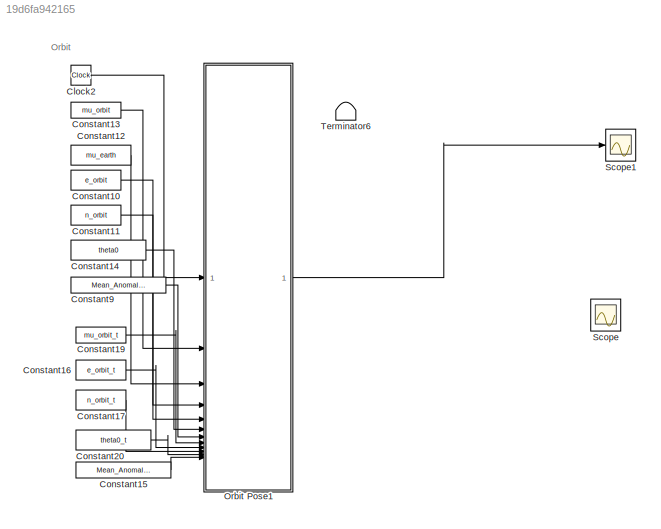
MODEL slx_19d6fa942165
KIND model
CONFIG AbsTol = auto
CONFIG EnableMultiTasking = off
CONFIG FixedStep = auto
CONFIG MaxStep = auto
CONFIG MinStep = auto
CONFIG RelTol = 1e-3
CONFIG SampleTimeConstraint = Unconstrained
CONFIG SolverName = VariableStepAuto
CONFIG StartTime = 0.0
CONFIG StopTime = 120
BLOCK [Clock] Clock2
BLOCK [Constant] Constant10
  Value = e_orbit
BLOCK [Constant] Constant11
  Value = n_orbit
BLOCK [Constant] Constant12
  Value = mu_earth
BLOCK [Constant] Constant13
  Value = mu_orbit
BLOCK [Constant] Constant14
  Value = theta0
BLOCK [Constant] Constant15
  Value = Mean_Anomaly0_t
BLOCK [Constant] Constant16
  Value = e_orbit_t
BLOCK [Constant] Constant17
  Value = n_orbit_t
BLOCK [Constant] Constant19
  Value = mu_orbit_t
BLOCK [Constant] Constant20
  Value = theta0_t
BLOCK [Constant] Constant9
  Value = Mean_Anomaly0
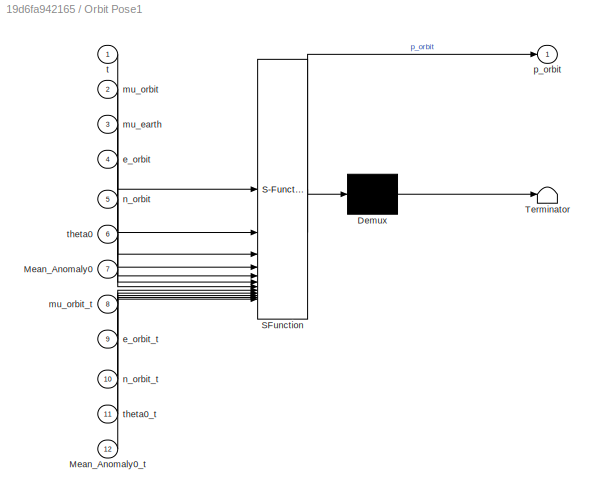
BLOCK [SubSystem] Orbit Pose1
  ErrorFcn = Stateflow.Translate.translate
  PermitHierarchicalResolution = ExplicitOnly
  SFBlockType = MATLAB Function
  TreatAsAtomicUnit = on
BLOCK [Demux] Orbit Pose1/ Demux 
  Outputs = 1
BLOCK [S-Function] Orbit Pose1/ SFunction 
  EnableBusSupport = on
  FunctionName = sf_sfun
  PortCounts = [12 2]
  SFcnIsStateOwnerBlock = off
  SFunctionDeploymentMode = off
  Tag = Stateflow S-Function 51
BLOCK [Terminator] Orbit Pose1/ Terminator 
BLOCK [Inport] Orbit Pose1/Mean_Anomaly0
  Port = 7
BLOCK [Inport] Orbit Pose1/Mean_Anomaly0_t
  Port = 12
BLOCK [Inport] Orbit Pose1/e_orbit
  Port = 4
BLOCK [Inport] Orbit Pose1/e_orbit_t
  Port = 9
BLOCK [Inport] Orbit Pose1/mu_earth
  Port = 3
BLOCK [Inport] Orbit Pose1/mu_orbit
  Port = 2
BLOCK [Inport] Orbit Pose1/mu_orbit_t
  Port = 8
BLOCK [Inport] Orbit Pose1/n_orbit
  Port = 5
BLOCK [Inport] Orbit Pose1/n_orbit_t
  Port = 10
BLOCK [Outport] Orbit Pose1/p_orbit
BLOCK [Inport] Orbit Pose1/t
BLOCK [Inport] Orbit Pose1/theta0
  Port = 6
BLOCK [Inport] Orbit Pose1/theta0_t
  Port = 11
BLOCK [Scope] Scope
  Floating = off
  NumInputPorts = 1
  ScopeSpecificationString = Simulink.scopes.TimeScopeBlockCfg('CurrentConfiguration', extmgr.ConfigurationSet(extmgr.Configuration('Core','General UI',true),extmgr.Configuration('Core','Source UI',true),extmgr.Configuration('Sources','WiredSimulink',true),extmgr.Configuration('Visuals','Time Domain',true,'SerializedDisplays',{struct('MinYLimReal','-1.00000','MaxYLimReal','1.00000','YLabelReal','','MinYLimMag','0.00000','MaxY...<+1478ch>
BLOCK [Scope] Scope1
  Floating = off
  NumInputPorts = 1
  ScopeSpecificationString = Simulink.scopes.TimeScopeBlockCfg('CurrentConfiguration', extmgr.ConfigurationSet(extmgr.Configuration('Core','General UI',true),extmgr.Configuration('Core','Source UI',true),extmgr.Configuration('Sources','WiredSimulink',true,'DataLoggingVariableName','ScopeData1'),extmgr.Configuration('Visuals','Time Domain',true,'SerializedDisplays',{struct('MinYLimReal','-0.29695','MaxYLimReal','1.00908','YLab...<+1535ch>
BLOCK [Terminator] Terminator6
ANNOTATION (root): Orbit
LINE Clock2:1 -> Orbit Pose1:1
LINE Constant10:1 -> Orbit Pose1:4
LINE Constant11:1 -> Orbit Pose1:5
LINE Constant12:1 -> Orbit Pose1:3
LINE Constant13:1 -> Orbit Pose1:2
LINE Constant14:1 -> Orbit Pose1:6
LINE Constant15:1 -> Orbit Pose1:12
LINE Constant16:1 -> Orbit Pose1:9
LINE Constant17:1 -> Orbit Pose1:10
LINE Constant19:1 -> Orbit Pose1:8
LINE Constant20:1 -> Orbit Pose1:11
LINE Constant9:1 -> Orbit Pose1:7
LINE Orbit Pose1:1 -> Scope1:1
CHART Orbit Pose1 states=1 transitions=1
  STATE_LABEL 'eML_blk_kernel()'
  STATE_LABEL 'SCRIPT:\nfunction p_orbit  = V_orbit(t,mu_orbit, mu_earth, e_orbit,n_orbit,theta0, Mean_Anomaly0, mu_orbit_t, e_orbit_t,n_orbit_t,theta0_t, Mean_Anomaly0_t)\n\ntheta=find_theta(t,e_orbit,n_orbit,Mean_Anomaly0);\n\n%E=0.5*MA_inv( Mean_Anomaly0 + (P_orb^(3/2)/mu_earth*t ));\n%theta=2*atan(   ((1-e)/(1+e)) *tan(E));\n%theta0=0;\n\n%p_orbit=(mu_orbit^2/mu_earth)*[1/(1+e*cos(theta))-(cos(theta-theta0))/(1+e*cos...<+1643ch>'
CHART  states=0 transitions=0
